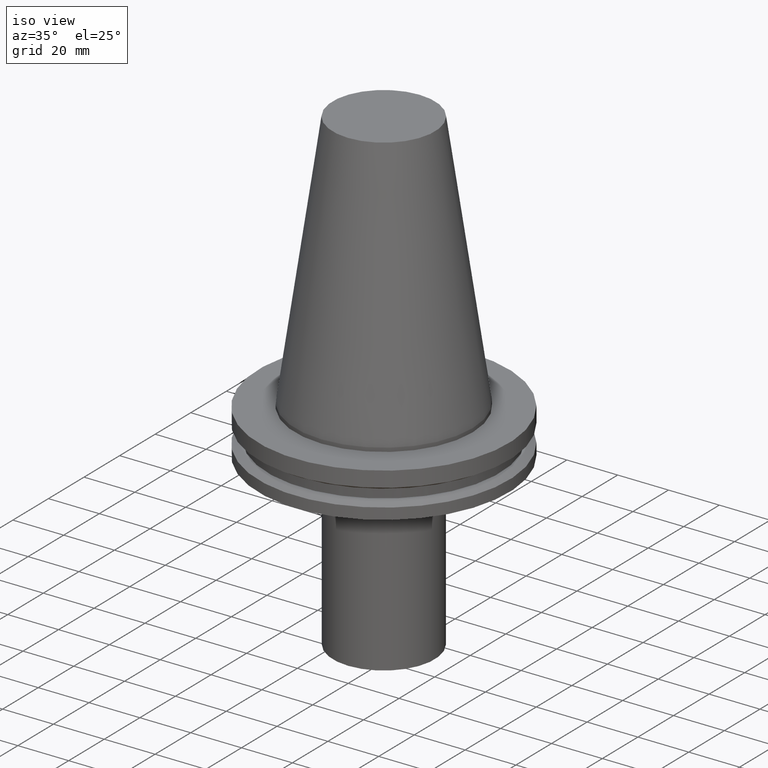
[diagram: clean part render]
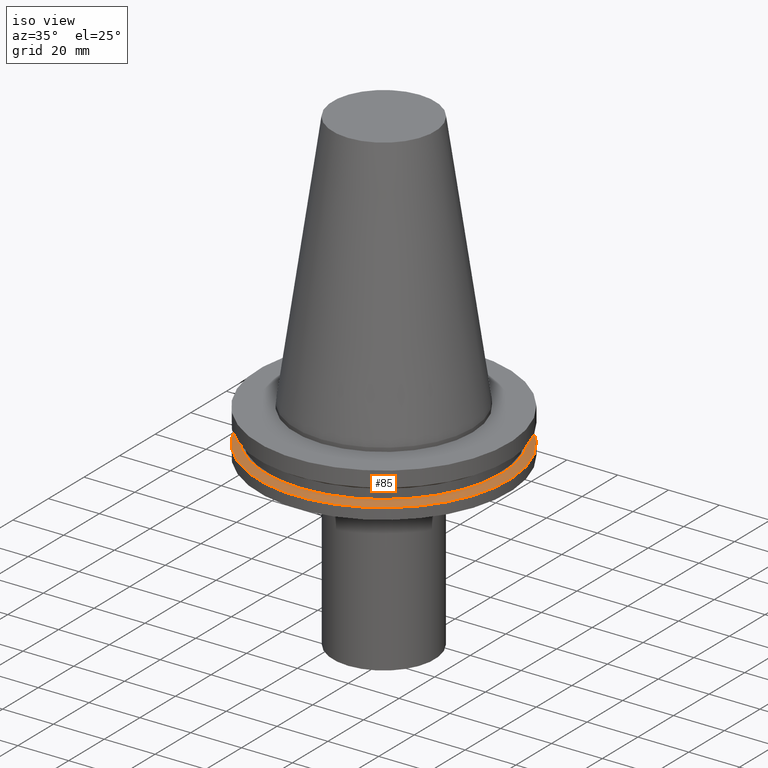
[diagram: same view with one face highlighted and labeled with its STEP entity id]
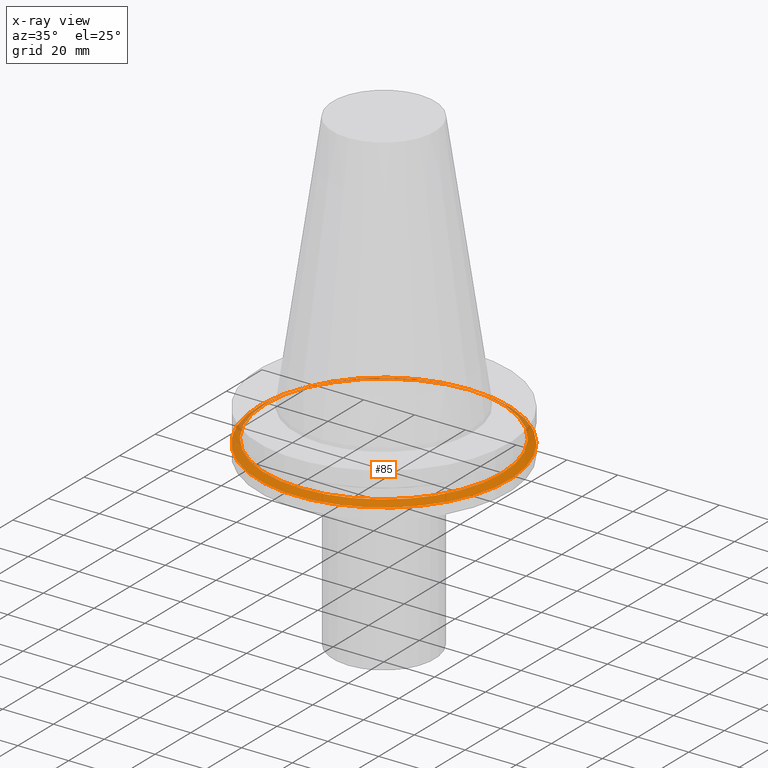
[diagram: x-ray of the same camera — body ghosted, the highlighted face saturated]
A machine part, iso view. The second image highlights one B-rep face of the part: STEP entity #85.
The next image is the same camera in x-ray: the body ghosted, the highlighted face saturated — about 11% of this face is hidden behind the body in this view.
In plain terms, the highlighted conical surface has half-angle 60 deg.
Its self-contained STEP definition (entity closure, byte-faithful):
#69=EDGE_CURVE('Unnamed[1]',#174,#174,#175,.T.);
#85=ADVANCED_FACE('Unnamed[1]',(#197,#198),#199,.T.);
#124=EDGE_CURVE('Unnamed[1]',#260,#260,#261,.T.);
#174=VERTEX_POINT('',#312);
#175=CIRCLE('',#313,46.43053755);
#197=FACE_BOUND('',#340,.T.);
#198=FACE_BOUND('',#341,.T.);
#199=CONICAL_SURFACE('',#342,47.821518775,1.04719755103023);
#260=VERTEX_POINT('',#418);
#261=CIRCLE('',#419,49.2125);
#312=CARTESIAN_POINT('',(7.98469713044073E-016,46.43053755,-13.04));
#313=AXIS2_PLACEMENT_3D('',#466,#467,#468);
#340=EDGE_LOOP('',(#489));
#341=EDGE_LOOP('',(#490));
#342=AXIS2_PLACEMENT_3D('',#491,#492,#493);
#418=CARTESIAN_POINT('',(8.96819062732941E-016,49.2125,-14.64616677));
#419=AXIS2_PLACEMENT_3D('',#562,#563,#564);
#466=CARTESIAN_POINT('',(7.98469713044074E-016,1.59693942608815E-015,-13.04));
#467=DIRECTION('',(6.12323399573677E-017,1.22464679914735E-016,-1.0));
#468=DIRECTION('',(-1.23259516440783E-032,1.0,1.22464679914735E-016));
#489=ORIENTED_EDGE('',*,*,#124,.F.);
#490=ORIENTED_EDGE('',*,*,#69,.T.);
#491=CARTESIAN_POINT('',(8.47644387888508E-016,1.69528877577702E-015,-13.843083385));
#492=DIRECTION('',(6.12323399573677E-017,1.22464679914735E-016,-1.0));
#493=DIRECTION('',(-1.23259516440783E-032,1.0,1.22464679914735E-016));
#562=CARTESIAN_POINT('',(8.96819062732942E-016,1.79363812546588E-015,-14.64616677));
#563=DIRECTION('',(6.12323399573677E-017,1.22464679914735E-016,-1.0));
#564=DIRECTION('',(-1.23259516440783E-032,1.0,1.22464679914735E-016));